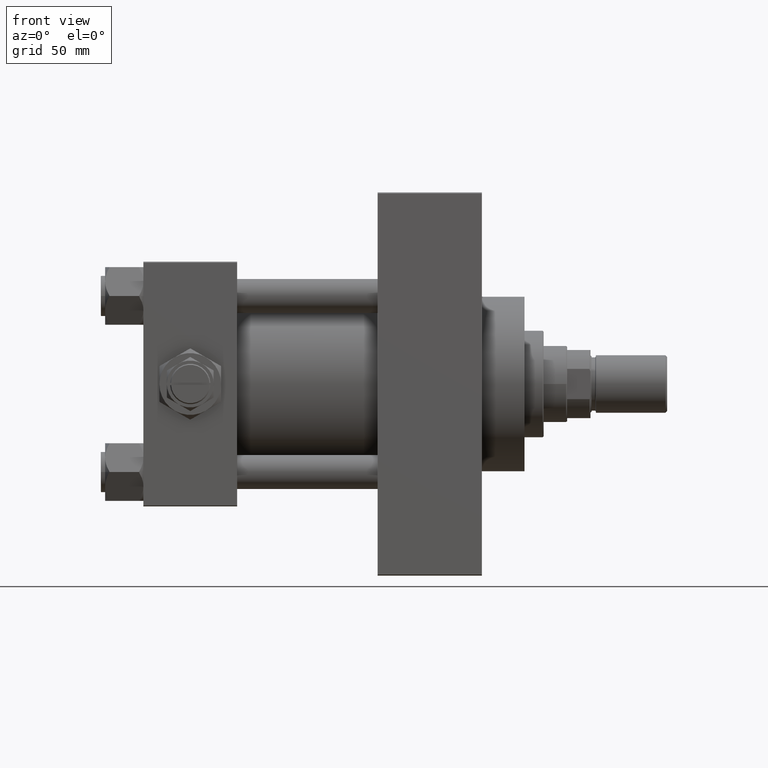
[diagram: clean part render]
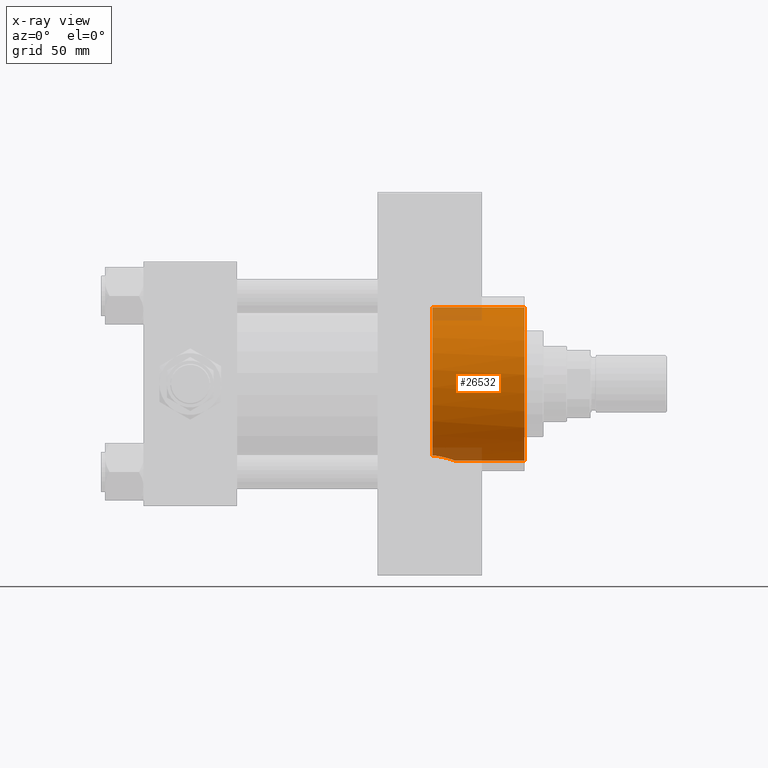
[diagram: x-ray — body ghosted, one internal face saturated and labeled with its STEP entity id]
A machine part, front view, then the same camera in x-ray: the body is ghosted and one INTERNAL B-rep face — a face not visible from any outside direction — is saturated and labeled: STEP entity #26532.
In plain terms, the highlighted cylindrical surface (partial cylindrical patch) has radius 36 mm, axis along (1, 0, 0).
Its self-contained STEP definition (entity closure, byte-faithful):
#87 = ORIENTED_EDGE ( 'NONE', *, *, #26245, .T. ) ;
#146 = CARTESIAN_POINT ( 'NONE',  ( 139.2689392453522430, -11.66300537238689650, -34.06086853725207675 ) ) ;
#896 = CARTESIAN_POINT ( 'NONE',  ( 145.9615557504130550, -2.628343228240499485, -35.90584824798534669 ) ) ;
#4183 = CARTESIAN_POINT ( 'NONE',  ( 143.7144084780975675, -7.753104972441681397, -35.15664683191295836 ) ) ;
#4379 = ORIENTED_EDGE ( 'NONE', *, *, #48631, .F. ) ;
#4436 = CARTESIAN_POINT ( 'NONE',  ( 135.7400000000000091, -12.93293470176045190, -33.59671412504503252 ) ) ;
#4687 = CARTESIAN_POINT ( 'NONE',  ( 142.2683236211793485, -9.456123306897648462, -34.73961675537525196 ) ) ;
#5353 = CIRCLE ( 'NONE', #32755, 36.00000000000000000 ) ;
#7412 = VERTEX_POINT ( 'NONE', #7872 ) ;
#7872 = CARTESIAN_POINT ( 'NONE',  ( 179.0000000000000000, 4.408728476930470856E-15, 36.00000000000000000 ) ) ;
#8243 = CARTESIAN_POINT ( 'NONE',  ( 138.6039743856111102, -11.99680468088060081, -33.94354112271072665 ) ) ;
#8494 = CARTESIAN_POINT ( 'NONE',  ( 144.1369082302658455, -7.132913908064971942, -35.28770313236167766 ) ) ;
#8685 = EDGE_LOOP ( 'NONE', ( #4379, #87, #49276, #23381, #43807 ) ) ;
#8740 = CARTESIAN_POINT ( 'NONE',  ( 141.1396695021039136, -10.42376285600496288, -34.45866136291867576 ) ) ;
#9089 = CIRCLE ( 'NONE', #23602, 36.00000000000000000 ) ;
#9853 = AXIS2_PLACEMENT_3D ( 'NONE', #34867, #27281, #30312 ) ;
#11789 = CARTESIAN_POINT ( 'NONE',  ( 140.5356348427428657, -10.86845247487190314, -34.32099817610182413 ) ) ;
#12468 = DIRECTION ( 'NONE',  ( 1.000000000000000000, -0.000000000000000000, -0.000000000000000000 ) ) ;
#12471 = DIRECTION ( 'NONE',  ( 1.000000000000000000, 0.000000000000000000, 0.000000000000000000 ) ) ;
#18815 = CARTESIAN_POINT ( 'NONE',  ( 135.7400000000000091, 0.000000000000000000, 0.000000000000000000 ) ) ;
#19270 = LINE ( 'NONE', #47960, #20111 ) ;
#19319 = CARTESIAN_POINT ( 'NONE',  ( 135.7400000000000091, 4.408728476930470856E-15, 36.00000000000000000 ) ) ;
#19324 = CARTESIAN_POINT ( 'NONE',  ( 142.7829955645537439, -8.922873027715070293, -34.88174282732673959 ) ) ;
#19583 = CARTESIAN_POINT ( 'NONE',  ( 146.2200000000000273, 3.330936773303134392E-21, -36.00000000000000000 ) ) ;
#20083 = CARTESIAN_POINT ( 'NONE',  ( 145.5762609626179369, -4.092528755394251760, -35.76841822259746095 ) ) ;
#20111 = VECTOR ( 'NONE', #31841, 1000.000000000000000 ) ;
#21988 = VERTEX_POINT ( 'NONE', #24404 ) ;
#23381 = ORIENTED_EDGE ( 'NONE', *, *, #28978, .F. ) ;
#23602 = AXIS2_PLACEMENT_3D ( 'NONE', #47038, #12471, #33731 ) ;
#23624 = CARTESIAN_POINT ( 'NONE',  ( 137.2076088460675294, -12.53825874082045644, -33.74619856893893655 ) ) ;
#23872 = CARTESIAN_POINT ( 'NONE',  ( 145.6891278366016422, -3.727918262643097336, -35.80834393886973288 ) ) ;
#24404 = CARTESIAN_POINT ( 'NONE',  ( 179.0000000000000000, 0.000000000000000000, -36.00000000000000000 ) ) ;
#26245 = EDGE_CURVE ( 'NONE', #35923, #7412, #46535, .T. ) ;
#26532 = ADVANCED_FACE ( 'NONE', ( #27534 ), #30559, .F. ) ;
#27152 = CARTESIAN_POINT ( 'NONE',  ( 136.1130436000879058, -12.85390086390293796, -33.62713791769441229 ) ) ;
#27281 = DIRECTION ( 'NONE',  ( 1.000000000000000000, -0.000000000000000000, -0.000000000000000000 ) ) ;
#27534 = FACE_OUTER_BOUND ( 'NONE', #8685, .T. ) ;
#27662 = CARTESIAN_POINT ( 'NONE',  ( 146.1544019816762727, -1.515576091947733905, -35.97576316411753083 ) ) ;
#28978 = EDGE_CURVE ( 'NONE', #38757, #21988, #19270, .T. ) ;
#29939 = VECTOR ( 'NONE', #12468, 1000.000000000000000 ) ;
#30312 = DIRECTION ( 'NONE',  ( 0.000000000000000000, 0.000000000000000000, -1.000000000000000000 ) ) ;
#30434 = DIRECTION ( 'NONE',  ( 0.000000000000000000, 0.000000000000000000, -1.000000000000000000 ) ) ;
#30559 = CYLINDRICAL_SURFACE ( 'NONE', #9853, 36.00000000000000000 ) ;
#31841 = DIRECTION ( 'NONE',  ( 1.000000000000000000, -0.000000000000000000, -0.000000000000000000 ) ) ;
#32755 = AXIS2_PLACEMENT_3D ( 'NONE', #18815, #49622, #30434 ) ;
#33731 = DIRECTION ( 'NONE',  ( 0.000000000000000000, 0.000000000000000000, -1.000000000000000000 ) ) ;
#34867 = CARTESIAN_POINT ( 'NONE',  ( 135.7400000000000091, 0.000000000000000000, 0.000000000000000000 ) ) ;
#34988 = CARTESIAN_POINT ( 'NONE',  ( 141.4301524439943023, -10.19013505585468238, -34.52862519156882826 ) ) ;
#35177 = CARTESIAN_POINT ( 'NONE',  ( 135.7400000000000091, 4.408728476930470856E-15, 36.00000000000000000 ) ) ;
#35246 = CARTESIAN_POINT ( 'NONE',  ( 146.2200000000001125, -0.7632647160769658878, -36.00000000000001421 ) ) ;
#35923 = VERTEX_POINT ( 'NONE', #19319 ) ;
#36463 = CARTESIAN_POINT ( 'NONE',  ( 146.2200000000000273, 3.330936773303134392E-21, -36.00000000000000000 ) ) ;
#38522 = CARTESIAN_POINT ( 'NONE',  ( 145.8814408249625671, -2.996635129533367081, -35.87694312671835206 ) ) ;
#38757 = VERTEX_POINT ( 'NONE', #36463 ) ;
#39286 = CARTESIAN_POINT ( 'NONE',  ( 144.3340033522584065, -6.815280192024304462, -35.35054759480855324 ) ) ;
#39532 = CARTESIAN_POINT ( 'NONE',  ( 144.8836492013383292, -5.839896060611122763, -35.52932100949514194 ) ) ;
#39604 = EDGE_CURVE ( 'NONE', #7412, #21988, #9089, .T. ) ;
#41996 = B_SPLINE_CURVE_WITH_KNOTS ( 'NONE', 3,
 ( #19583, #35246, #27662, #896, #38522, #23872, #20083, #43069, #39532, #39286, #8494, #4183, #43316, #19324, #4687, #34988, #8740, #11789, #42819, #146, #8243, #47099, #23624, #42564, #27152, #4436 ),
 .UNSPECIFIED., .F., .F.,
 ( 4, 2, 2, 2, 2, 2, 2, 2, 2, 2, 2, 2, 4 ),
 ( 0.01810032772820883637, 0.02036086973656274501, 0.02149114074073970454, 0.02262141174491666754, 0.02488195375327058659, 0.02601222475744752530, 0.02714249576162446401, 0.02940303776997839347, 0.03053330877415539116, 0.03166357977833238885, 0.03392412178668637035, 0.03505439279086336457, 0.03618466379504036573 ),
 .UNSPECIFIED. ) ;
#42564 = CARTESIAN_POINT ( 'NONE',  ( 136.4827252521805008, -12.75862568112612294, -33.66350131574144910 ) ) ;
#42752 = EDGE_CURVE ( 'NONE', #38757, #45080, #41996, .T. ) ;
#42819 = CARTESIAN_POINT ( 'NONE',  ( 140.2234778375481312, -11.07831175427971004, -34.25365854375355923 ) ) ;
#42832 = CARTESIAN_POINT ( 'NONE',  ( 135.7400000000000091, -12.93293470176045190, -33.59671412504503252 ) ) ;
#43069 = CARTESIAN_POINT ( 'NONE',  ( 145.1948937127548049, -5.159834589306229624, -35.63551938799944452 ) ) ;
#43316 = CARTESIAN_POINT ( 'NONE',  ( 143.4891427515922828, -8.055144359843689372, -35.08850325644000634 ) ) ;
#43807 = ORIENTED_EDGE ( 'NONE', *, *, #42752, .T. ) ;
#45080 = VERTEX_POINT ( 'NONE', #42832 ) ;
#46535 = LINE ( 'NONE', #35177, #29939 ) ;
#47038 = CARTESIAN_POINT ( 'NONE',  ( 179.0000000000000000, 0.000000000000000000, 0.000000000000000000 ) ) ;
#47099 = CARTESIAN_POINT ( 'NONE',  ( 137.5622627804116007, -12.41346128962089956, -33.79242230791055590 ) ) ;
#47960 = CARTESIAN_POINT ( 'NONE',  ( 135.7400000000000091, 0.000000000000000000, -36.00000000000000000 ) ) ;
#48631 = EDGE_CURVE ( 'NONE', #35923, #45080, #5353, .T. ) ;
#49276 = ORIENTED_EDGE ( 'NONE', *, *, #39604, .T. ) ;
#49622 = DIRECTION ( 'NONE',  ( 1.000000000000000000, 0.000000000000000000, 0.000000000000000000 ) ) ;